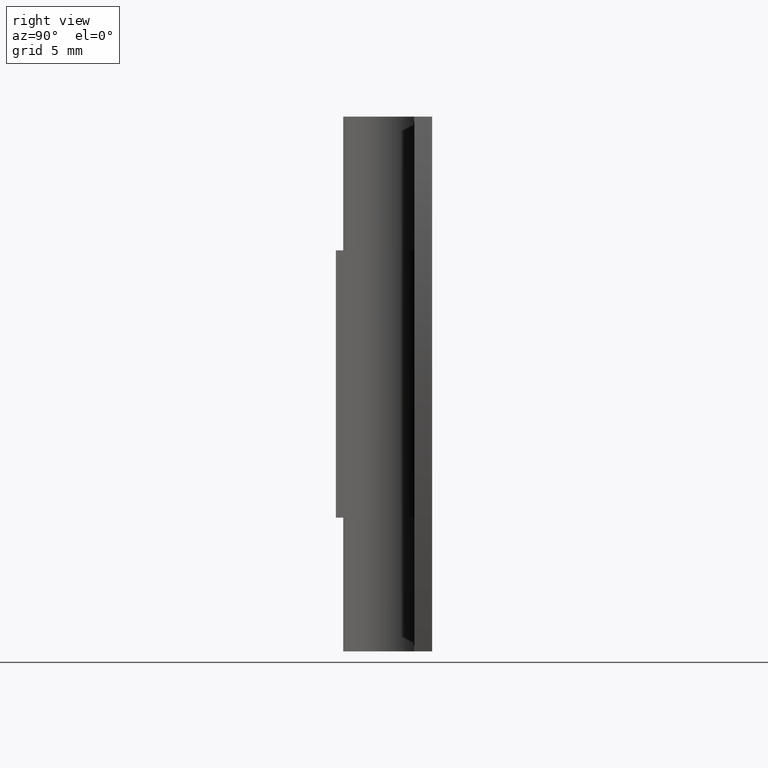
[diagram: clean part render]
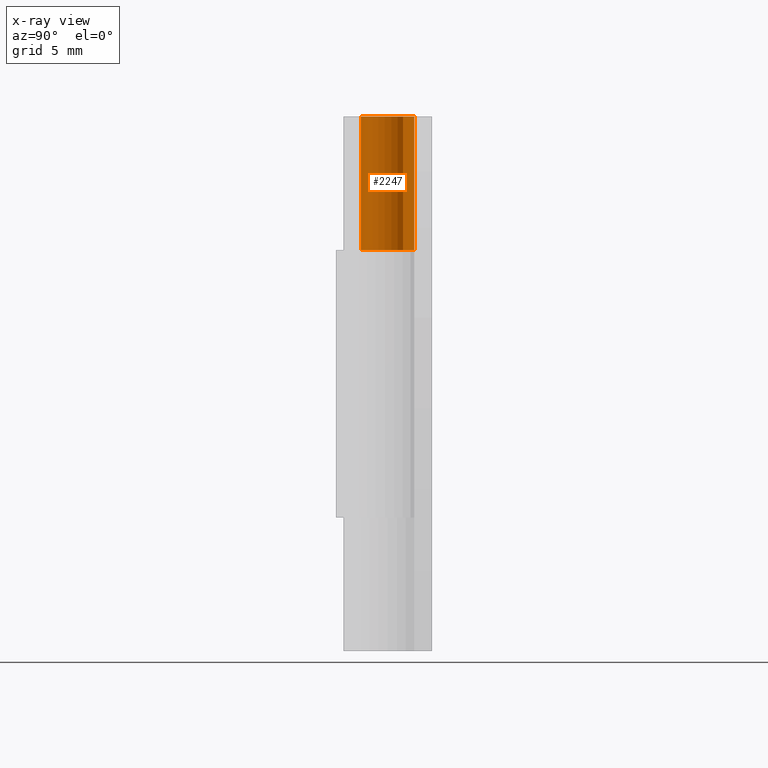
[diagram: x-ray — body ghosted, one internal face saturated and labeled with its STEP entity id]
A machine part, right view, then the same camera in x-ray: the body is ghosted and one INTERNAL B-rep face — a face not visible from any outside direction — is saturated and labeled: STEP entity #2247.
In plain terms, the highlighted face is a freeform B-spline surface patch.
Its self-contained STEP definition (entity closure, byte-faithful):
#2144=CARTESIAN_POINT('',(1.221924711264978,0.870000000000000,22.500000000000000));
#2145=VERTEX_POINT('',#2144);
#2153=CARTESIAN_POINT('',(1.221924711264978,0.870000000000000,30.0));
#2154=VERTEX_POINT('',#2153);
#2155=CARTESIAN_POINT('',(1.221924711264978,0.870000000000000,30.0));
#2156=CARTESIAN_POINT('',(1.221924711264978,0.870000000000000,22.500000000000000));
#2157=QUASI_UNIFORM_CURVE('',1,(#2155,#2156),.UNSPECIFIED.,.F.,.U.);
#2158=EDGE_CURVE('',#2154,#2145,#2157,.T.);
#2175=CARTESIAN_POINT('',(0.013089803247560,1.499942884596257,30.187500000000000));
#2176=CARTESIAN_POINT('',(0.013089803247560,1.499942884596257,22.307812500000001));
#2177=CARTESIAN_POINT('',(-1.872596841227445,1.516399022637388,30.187500000000011));
#2178=CARTESIAN_POINT('',(-1.872596841227445,1.516399022637388,22.307812500000001));
#2179=CARTESIAN_POINT('',(-1.464444010679899,-0.324659420907155,30.187500000000000));
#2180=CARTESIAN_POINT('',(-1.464444010679899,-0.324659420907155,22.307812500000001));
#2181=CARTESIAN_POINT('',(-1.056291180132355,-2.165717864451697,30.187500000000011));
#2182=CARTESIAN_POINT('',(-1.056291180132355,-2.165717864451697,22.307812500000001));
#2183=CARTESIAN_POINT('',(0.645766645212443,-1.353877926524790,30.187500000000000));
#2184=CARTESIAN_POINT('',(0.645766645212443,-1.353877926524790,22.307812500000001));
#2185=CARTESIAN_POINT('',(2.347824470557240,-0.542037988597883,30.187500000000011));
#2186=CARTESIAN_POINT('',(2.347824470557240,-0.542037988597883,22.307812500000001));
#2187=CARTESIAN_POINT('',(1.173912235278620,0.933771954956429,30.187500000000000));
#2188=CARTESIAN_POINT('',(1.173912235278620,0.933771954956429,22.307812500000001));
#2196=(BOUNDED_SURFACE()B_SPLINE_SURFACE(1,2,((#2175,#2177,#2179,#2181,#2183,#2185,#2187),(#2176,#2178,#2180,#2182,#2184,#2186,#2188)),.UNSPECIFIED.,.F.,.F.,.U.)B_SPLINE_SURFACE_WITH_KNOTS((2,2),(3,2,2,3),(0.0,7.879687500000009),(0.0,2.894056444905421,5.788112889810842,8.682169334716264),.UNSPECIFIED.)GEOMETRIC_REPRESENTATION_ITEM()RATIONAL_B_SPLINE_SURFACE(((1.0,0.622514636637620,1.0,0.622514636637620,1.0,0.622514636637620,1.0),(1.0,0.622514636637620,1.0,0.622514636637620,1.0,0.622514636637620,1.0)))REPRESENTATION_ITEM('')SURFACE());
#2197=CARTESIAN_POINT('',(0.0,1.500000000000000,22.500000000000000));
#2198=VERTEX_POINT('',#2197);
#2199=CARTESIAN_POINT('',(1.221924711264978,0.870000000000000,22.500000000000000));
#2200=CARTESIAN_POINT('',(1.906087977416403,-0.090914944195616,22.500000000000007));
#2201=CARTESIAN_POINT('',(1.133572891133023,-0.982350497779850,22.500000000000000));
#2202=CARTESIAN_POINT('',(0.361057804849642,-1.873786051364085,22.500000000000007));
#2203=CARTESIAN_POINT('',(-0.687386354243376,-1.333229162597339,22.500000000000000));
#2204=CARTESIAN_POINT('',(-1.735830513336394,-0.792672273830592,22.500000000000007));
#2205=CARTESIAN_POINT('',(-1.457711175764254,0.353663863084704,22.500000000000000));
#2206=CARTESIAN_POINT('',(-1.179591838192114,1.500000000000000,22.500000000000007));
#2207=CARTESIAN_POINT('',(0.0,1.500000000000000,22.500000000000000));
#2215=(BOUNDED_CURVE()B_SPLINE_CURVE(2,(#2199,#2200,#2201,#2202,#2203,#2204,#2205,#2206,#2207),.UNSPECIFIED.,.F.,.U.)B_SPLINE_CURVE_WITH_KNOTS((3,2,2,2,3),(0.0,0.250000000000000,0.500000000000000,0.750000000000000,1.0),.UNSPECIFIED.)CURVE()GEOMETRIC_REPRESENTATION_ITEM()RATIONAL_B_SPLINE_CURVE((1.0,0.786058492964467,1.0,0.786058492964467,1.0,0.786058492964467,1.0,0.786058492964467,1.0))REPRESENTATION_ITEM(''));
#2216=EDGE_CURVE('',#2145,#2198,#2215,.T.);
#2217=ORIENTED_EDGE('',*,*,#2216,.T.);
#2218=CARTESIAN_POINT('',(0.0,1.500000000000000,30.0));
#2219=VERTEX_POINT('',#2218);
#2220=CARTESIAN_POINT('',(0.0,1.500000000000000,22.500000000000000));
#2221=CARTESIAN_POINT('',(0.0,1.500000000000000,30.0));
#2222=QUASI_UNIFORM_CURVE('',1,(#2220,#2221),.UNSPECIFIED.,.F.,.U.);
#2223=EDGE_CURVE('',#2198,#2219,#2222,.T.);
#2224=ORIENTED_EDGE('',*,*,#2223,.T.);
#2225=CARTESIAN_POINT('',(1.221924711264978,0.870000000000000,30.0));
#2226=CARTESIAN_POINT('',(1.906087977416403,-0.090914944195616,30.000000000000004));
#2227=CARTESIAN_POINT('',(1.133572891133023,-0.982350497779850,30.0));
#2228=CARTESIAN_POINT('',(0.361057804849642,-1.873786051364085,30.000000000000004));
#2229=CARTESIAN_POINT('',(-0.687386354243376,-1.333229162597339,30.0));
#2230=CARTESIAN_POINT('',(-1.735830513336394,-0.792672273830592,30.000000000000004));
#2231=CARTESIAN_POINT('',(-1.457711175764254,0.353663863084704,30.0));
#2232=CARTESIAN_POINT('',(-1.179591838192114,1.500000000000000,30.000000000000004));
#2233=CARTESIAN_POINT('',(0.0,1.500000000000000,30.0));
#2241=(BOUNDED_CURVE()B_SPLINE_CURVE(2,(#2225,#2226,#2227,#2228,#2229,#2230,#2231,#2232,#2233),.UNSPECIFIED.,.F.,.U.)B_SPLINE_CURVE_WITH_KNOTS((3,2,2,2,3),(0.0,0.250000000000000,0.500000000000000,0.750000000000000,1.0),.UNSPECIFIED.)CURVE()GEOMETRIC_REPRESENTATION_ITEM()RATIONAL_B_SPLINE_CURVE((1.0,0.786058492964467,1.0,0.786058492964467,1.0,0.786058492964467,1.0,0.786058492964467,1.0))REPRESENTATION_ITEM(''));
#2242=EDGE_CURVE('',#2154,#2219,#2241,.T.);
#2243=ORIENTED_EDGE('',*,*,#2242,.F.);
#2244=ORIENTED_EDGE('',*,*,#2158,.T.);
#2245=EDGE_LOOP('',(#2217,#2224,#2243,#2244));
#2246=FACE_OUTER_BOUND('',#2245,.T.);
#2247=ADVANCED_FACE('',(#2246),#2196,.F.);